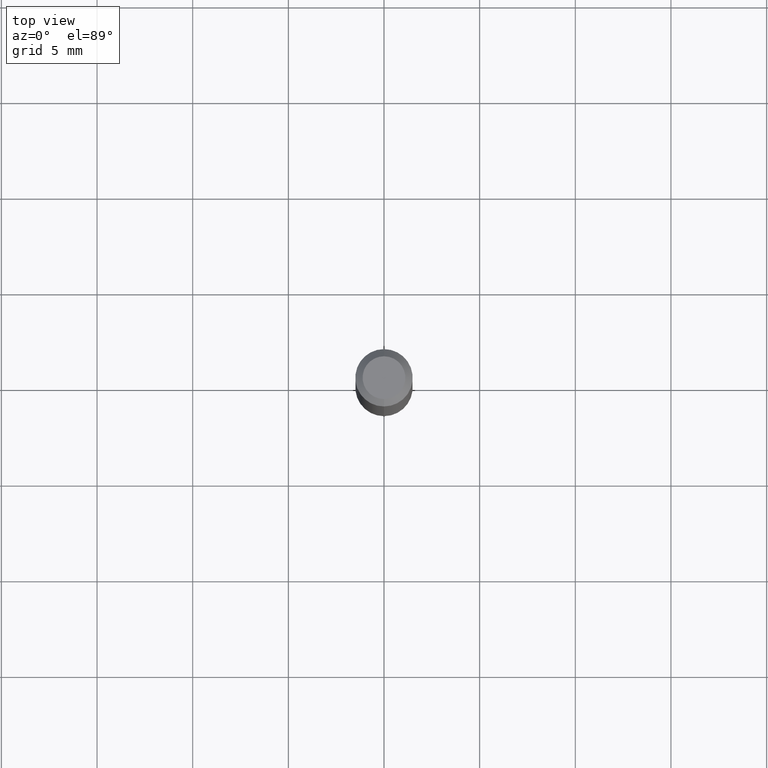
[diagram: clean part render]
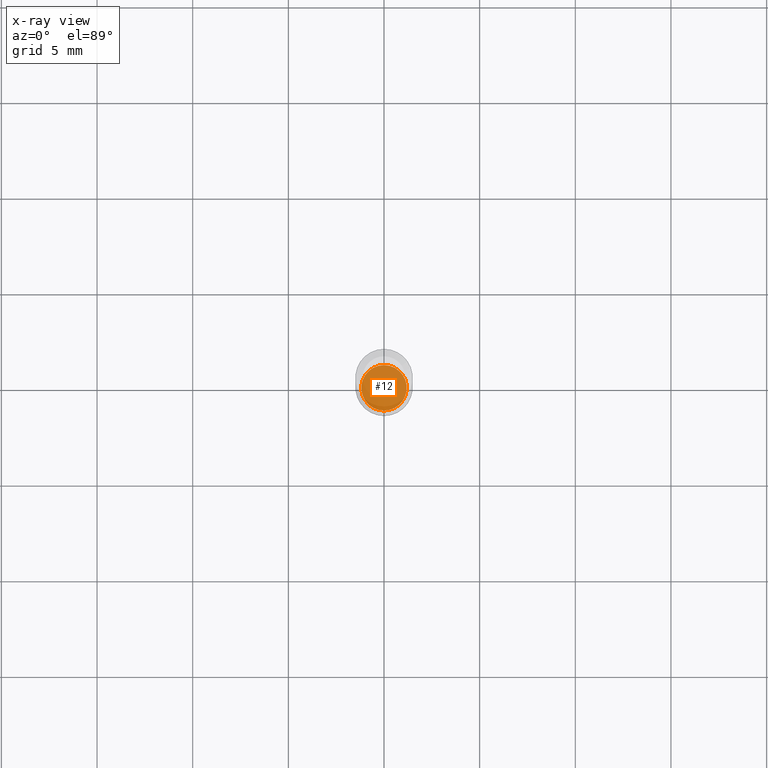
[diagram: x-ray — body ghosted, one internal face saturated and labeled with its STEP entity id]
A machine part, top view, then the same camera in x-ray: the body is ghosted and one INTERNAL B-rep face — a face not visible from any outside direction — is saturated and labeled: STEP entity #12.
In plain terms, the highlighted planar face has unit normal (-0, 0, 1).
Its self-contained STEP definition (entity closure, byte-faithful):
#2 = PLANE ( 'NONE',  #130 ) ;
#12 = ADVANCED_FACE ( 'NONE', ( #201 ), #2, .F. ) ;
#13 = CARTESIAN_POINT ( 'NONE',  ( -3.264535051818032208E-16, -0.04675000000000423261, -1.212599999999999900 ) ) ;
#20 = EDGE_CURVE ( 'NONE', #63, #118, #312, .T. ) ;
#26 = DIRECTION ( 'NONE',  ( -6.982962677686266711E-15, -1.000000000000000000, 2.921762560068730989E-15 ) ) ;
#63 = VERTEX_POINT ( 'NONE', #403 ) ;
#64 = CARTESIAN_POINT ( 'NONE',  ( 2.965301952206998270E-29, -4.233875559417696891E-15, -1.212599999999999900 ) ) ;
#79 = ORIENTED_EDGE ( 'NONE', *, *, #20, .F. ) ;
#110 = CIRCLE ( 'NONE', #186, 0.04674999999999999295 ) ;
#118 = VERTEX_POINT ( 'NONE', #13 ) ;
#130 = AXIS2_PLACEMENT_3D ( 'NONE', #472, #244, #259 ) ;
#149 = DIRECTION ( 'NONE',  ( -2.445408174341908367E-29, 3.491568167093598573E-15, 1.000000000000000000 ) ) ;
#180 = ORIENTED_EDGE ( 'NONE', *, *, #512, .F. ) ;
#186 = AXIS2_PLACEMENT_3D ( 'NONE', #64, #149, #227 ) ;
#201 = FACE_OUTER_BOUND ( 'NONE', #396, .T. ) ;
#227 = DIRECTION ( 'NONE',  ( -6.982962677686266711E-15, -1.000000000000000000, 2.921762560068730989E-15 ) ) ;
#244 = DIRECTION ( 'NONE',  ( -2.445408174341908087E-29, 3.491568167093598573E-15, 1.000000000000000000 ) ) ;
#259 = DIRECTION ( 'NONE',  ( -6.982962677686265922E-15, -1.000000000000000000, 3.491568167093598573E-15 ) ) ;
#291 = CARTESIAN_POINT ( 'NONE',  ( 2.965301952206998270E-29, -4.233875559417696891E-15, -1.212599999999999900 ) ) ;
#312 = CIRCLE ( 'NONE', #485, 0.04674999999999999295 ) ;
#396 = EDGE_LOOP ( 'NONE', ( #180, #79 ) ) ;
#403 = CARTESIAN_POINT ( 'NONE',  ( 3.339550858072768183E-16, 0.04674999999999576022, -1.212600000000000122 ) ) ;
#436 = DIRECTION ( 'NONE',  ( -2.445408174341908367E-29, 3.491568167093598573E-15, 1.000000000000000000 ) ) ;
#472 = CARTESIAN_POINT ( 'NONE',  ( 2.965301952206998270E-29, -4.233875559417696891E-15, -1.212599999999999900 ) ) ;
#485 = AXIS2_PLACEMENT_3D ( 'NONE', #291, #436, #26 ) ;
#512 = EDGE_CURVE ( 'NONE', #118, #63, #110, .T. ) ;